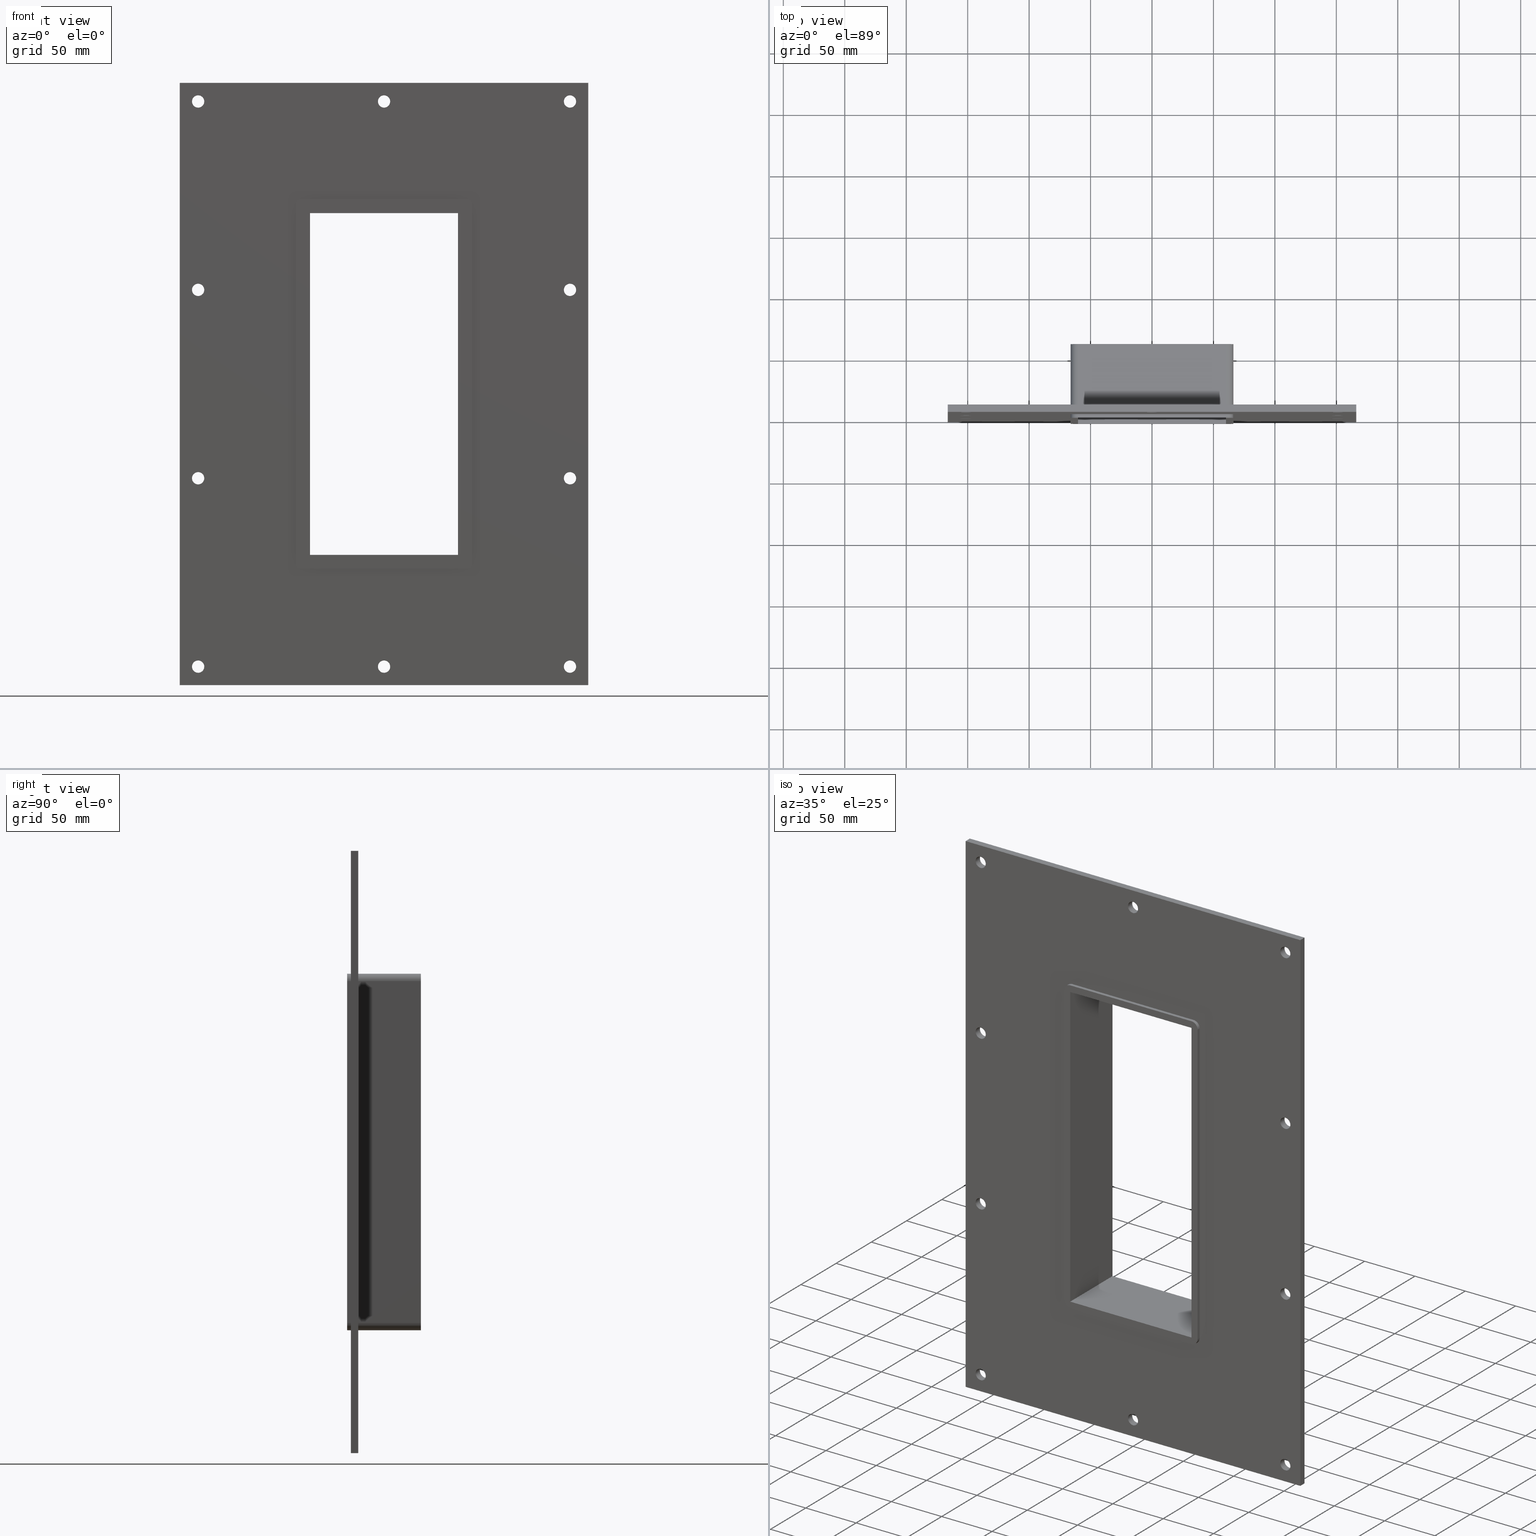
[diagram: canonical four-view strip — front | top / right | iso, engineering-drawing reading convention]
A machine part, canonical four-view strip (front | top / right | iso — engineering-drawing reading convention). The complete STEP part file that produces these views, byte-faithful:
ISO-10303-21;
HEADER;
/****************************************************************
 * Generated by software with PDElib inside                    *
 * PDElib Version v51a, created Wed 11/30/2011                  *
 * ITI Transcendata (http://www.transcendata.com/)              *
 ****************************************************************/
FILE_DESCRIPTION((''),'2;1');
FILE_NAME('C:\\RoxtecConfigurator\\CreatedFiles\\STEP\\GHFL1008X1.stp','2014-04-28T09:55:43',(''),(''),'Autodesk Inventor 2013','Autodesk Inventor 2013','');
FILE_SCHEMA(('AUTOMOTIVE_DESIGN { 1 0 10303 214 1 1 1 1 }'));
ENDSEC;
DATA;
#5=APPLICATION_CONTEXT('automotive design');
#6=APPLICATION_PROTOCOL_DEFINITION('International Standard','automotive_design',2001,#5);
#7=PRODUCT_CONTEXT('',#5,'mechanical');
#8=PRODUCT('GH FL100_ISO','GH FL100_ISO',$,(#7));
#9=PRODUCT_RELATED_PRODUCT_CATEGORY('part',$,(#8));
#10=PRODUCT_DEFINITION_FORMATION('',$,#8);
#11=PRODUCT_DEFINITION_CONTEXT('part definition',#5,'design');
#12=PRODUCT_DEFINITION('',$,#10,#11);
#18=(NAMED_UNIT(*)PLANE_ANGLE_UNIT()SI_UNIT($,.RADIAN.));
#19=DIMENSIONAL_EXPONENTS(0.0,0.0,0.0,0.0,0.0,0.0,0.0);
#20=PLANE_ANGLE_MEASURE_WITH_UNIT(PLANE_ANGLE_MEASURE(0.0174532925),#18);
#24=(CONVERSION_BASED_UNIT('DEGREE',#20)NAMED_UNIT(#19)PLANE_ANGLE_UNIT());
#28=(NAMED_UNIT(*)SI_UNIT($,.STERADIAN.)SOLID_ANGLE_UNIT());
#32=(LENGTH_UNIT()NAMED_UNIT(*)SI_UNIT(.MILLI.,.METRE.));
#34=UNCERTAINTY_MEASURE_WITH_UNIT(LENGTH_MEASURE(0.01),#32,'DISTANCE_ACCURACY_VALUE','');
#36=(GEOMETRIC_REPRESENTATION_CONTEXT(3)GLOBAL_UNCERTAINTY_ASSIGNED_CONTEXT((#34))GLOBAL_UNIT_ASSIGNED_CONTEXT((#24,#28,#32))REPRESENTATION_CONTEXT('None','None'));
#37=AXIS2_PLACEMENT_3D('',#38,#39,#40);
#38=CARTESIAN_POINT('',(0.0,0.0,0.0));
#39=DIRECTION('',(0.0,0.0,1.0));
#40=DIRECTION('',(1.0,0.0,0.0));
#41=SHAPE_REPRESENTATION('',(#37),#36);
#42=PRODUCT_DEFINITION_SHAPE('','',#12);
#43=SHAPE_DEFINITION_REPRESENTATION(#42,#41);
#49=(NAMED_UNIT(*)PLANE_ANGLE_UNIT()SI_UNIT($,.RADIAN.));
#50=DIMENSIONAL_EXPONENTS(0.0,0.0,0.0,0.0,0.0,0.0,0.0);
#51=PLANE_ANGLE_MEASURE_WITH_UNIT(PLANE_ANGLE_MEASURE(0.0174532925),#49);
#55=(CONVERSION_BASED_UNIT('DEGREE',#51)NAMED_UNIT(#50)PLANE_ANGLE_UNIT());
#59=(NAMED_UNIT(*)SI_UNIT($,.STERADIAN.)SOLID_ANGLE_UNIT());
#63=(LENGTH_UNIT()NAMED_UNIT(*)SI_UNIT(.MILLI.,.METRE.));
#65=UNCERTAINTY_MEASURE_WITH_UNIT(LENGTH_MEASURE(0.000001),#63,'DISTANCE_ACCURACY_VALUE','');
#67=(GEOMETRIC_REPRESENTATION_CONTEXT(3)GLOBAL_UNCERTAINTY_ASSIGNED_CONTEXT((#65))GLOBAL_UNIT_ASSIGNED_CONTEXT((#55,#59,#63))REPRESENTATION_CONTEXT('','3D'));
#68=CARTESIAN_POINT('',(-151.25000000000006,595.19429600761453,-229.99999999999994));
#69=DIRECTION('',(0.0,-1.0,0.0));
#70=DIRECTION('',(1.0,0.0,0.0));
#71=AXIS2_PLACEMENT_3D('',#68,#69,#70);
#72=CYLINDRICAL_SURFACE('',#71,5.0);
#73=CARTESIAN_POINT('',(-156.25000000000006,6.000000000000014,-229.99999999999994));
#74=VERTEX_POINT('',#73);
#75=CARTESIAN_POINT('',(-151.25000000000006,6.000000000000014,-229.99999999999994));
#76=DIRECTION('',(0.0,-1.0,0.0));
#77=DIRECTION('',(1.0,0.0,0.0));
#78=AXIS2_PLACEMENT_3D('',#75,#76,#77);
#79=CIRCLE('',#78,5.0);
#80=EDGE_CURVE('',#74,#74,#79,.T.);
#81=ORIENTED_EDGE('',*,*,#80,.F.);
#82=EDGE_LOOP('',(#81));
#83=FACE_OUTER_BOUND('',#82,.T.);
#84=CARTESIAN_POINT('',(-146.25000000000006,0.0,-229.99999999999994));
#85=VERTEX_POINT('',#84);
#86=CARTESIAN_POINT('',(-151.25000000000006,0.0,-229.99999999999994));
#87=DIRECTION('',(0.0,1.0,0.0));
#88=DIRECTION('',(1.0,0.0,0.0));
#89=AXIS2_PLACEMENT_3D('',#86,#87,#88);
#90=CIRCLE('',#89,5.0);
#91=EDGE_CURVE('',#85,#85,#90,.T.);
#92=ORIENTED_EDGE('',*,*,#91,.F.);
#93=EDGE_LOOP('',(#92));
#94=FACE_BOUND('',#93,.T.);
#95=ADVANCED_FACE('',(#83,#94),#72,.F.);
#96=CARTESIAN_POINT('',(151.34999999999997,595.19429600761453,-76.699999999999875));
#97=DIRECTION('',(0.0,-1.0,0.0));
#98=DIRECTION('',(1.0,0.0,0.0));
#99=AXIS2_PLACEMENT_3D('',#96,#97,#98);
#100=CYLINDRICAL_SURFACE('',#99,5.0);
#101=CARTESIAN_POINT('',(146.34999999999997,6.000000000000014,-76.699999999999875));
#102=VERTEX_POINT('',#101);
#103=CARTESIAN_POINT('',(151.34999999999997,6.000000000000014,-76.699999999999875));
#104=DIRECTION('',(0.0,-1.0,0.0));
#105=DIRECTION('',(1.0,0.0,0.0));
#106=AXIS2_PLACEMENT_3D('',#103,#104,#105);
#107=CIRCLE('',#106,5.0);
#108=EDGE_CURVE('',#102,#102,#107,.T.);
#109=ORIENTED_EDGE('',*,*,#108,.F.);
#110=EDGE_LOOP('',(#109));
#111=FACE_OUTER_BOUND('',#110,.T.);
#112=CARTESIAN_POINT('',(156.34999999999997,0.0,-76.699999999999875));
#113=VERTEX_POINT('',#112);
#114=CARTESIAN_POINT('',(151.34999999999997,0.0,-76.699999999999875));
#115=DIRECTION('',(0.0,1.0,0.0));
#116=DIRECTION('',(1.0,0.0,0.0));
#117=AXIS2_PLACEMENT_3D('',#114,#115,#116);
#118=CIRCLE('',#117,5.0);
#119=EDGE_CURVE('',#113,#113,#118,.T.);
#120=ORIENTED_EDGE('',*,*,#119,.F.);
#121=EDGE_LOOP('',(#120));
#122=FACE_BOUND('',#121,.T.);
#123=ADVANCED_FACE('',(#111,#122),#100,.F.);
#124=CARTESIAN_POINT('',(-151.25000000000006,595.19429600761453,-76.699999999999875));
#125=DIRECTION('',(0.0,-1.0,0.0));
#126=DIRECTION('',(1.0,0.0,0.0));
#127=AXIS2_PLACEMENT_3D('',#124,#125,#126);
#128=CYLINDRICAL_SURFACE('',#127,5.0);
#129=CARTESIAN_POINT('',(-156.25000000000006,6.000000000000014,-76.699999999999875));
#130=VERTEX_POINT('',#129);
#131=CARTESIAN_POINT('',(-151.25000000000006,6.000000000000014,-76.699999999999875));
#132=DIRECTION('',(0.0,-1.0,0.0));
#133=DIRECTION('',(1.0,0.0,0.0));
#134=AXIS2_PLACEMENT_3D('',#131,#132,#133);
#135=CIRCLE('',#134,5.0);
#136=EDGE_CURVE('',#130,#130,#135,.T.);
#137=ORIENTED_EDGE('',*,*,#136,.F.);
#138=EDGE_LOOP('',(#137));
#139=FACE_OUTER_BOUND('',#138,.T.);
#140=CARTESIAN_POINT('',(-146.25000000000006,0.0,-76.699999999999875));
#141=VERTEX_POINT('',#140);
#142=CARTESIAN_POINT('',(-151.25000000000006,0.0,-76.699999999999875));
#143=DIRECTION('',(0.0,1.0,0.0));
#144=DIRECTION('',(1.0,0.0,0.0));
#145=AXIS2_PLACEMENT_3D('',#142,#143,#144);
#146=CIRCLE('',#145,5.0);
#147=EDGE_CURVE('',#141,#141,#146,.T.);
#148=ORIENTED_EDGE('',*,*,#147,.F.);
#149=EDGE_LOOP('',(#148));
#150=FACE_BOUND('',#149,.T.);
#151=ADVANCED_FACE('',(#139,#150),#128,.F.);
#152=CARTESIAN_POINT('',(151.34999999999997,595.19429600761453,76.600000000000136));
#153=DIRECTION('',(0.0,-1.0,0.0));
#154=DIRECTION('',(1.0,0.0,0.0));
#155=AXIS2_PLACEMENT_3D('',#152,#153,#154);
#156=CYLINDRICAL_SURFACE('',#155,5.0);
#157=CARTESIAN_POINT('',(146.34999999999997,6.000000000000014,76.600000000000136));
#158=VERTEX_POINT('',#157);
#159=CARTESIAN_POINT('',(151.34999999999997,6.000000000000014,76.600000000000136));
#160=DIRECTION('',(0.0,-1.0,0.0));
#161=DIRECTION('',(1.0,0.0,0.0));
#162=AXIS2_PLACEMENT_3D('',#159,#160,#161);
#163=CIRCLE('',#162,5.0);
#164=EDGE_CURVE('',#158,#158,#163,.T.);
#165=ORIENTED_EDGE('',*,*,#164,.F.);
#166=EDGE_LOOP('',(#165));
#167=FACE_OUTER_BOUND('',#166,.T.);
#168=CARTESIAN_POINT('',(156.34999999999997,0.0,76.600000000000136));
#169=VERTEX_POINT('',#168);
#170=CARTESIAN_POINT('',(151.34999999999997,0.0,76.600000000000136));
#171=DIRECTION('',(0.0,1.0,0.0));
#172=DIRECTION('',(1.0,0.0,0.0));
#173=AXIS2_PLACEMENT_3D('',#170,#171,#172);
#174=CIRCLE('',#173,5.0);
#175=EDGE_CURVE('',#169,#169,#174,.T.);
#176=ORIENTED_EDGE('',*,*,#175,.F.);
#177=EDGE_LOOP('',(#176));
#178=FACE_BOUND('',#177,.T.);
#179=ADVANCED_FACE('',(#167,#178),#156,.F.);
#180=CARTESIAN_POINT('',(-151.25000000000006,595.19429600761453,76.600000000000136));
#181=DIRECTION('',(0.0,-1.0,0.0));
#182=DIRECTION('',(1.0,0.0,0.0));
#183=AXIS2_PLACEMENT_3D('',#180,#181,#182);
#184=CYLINDRICAL_SURFACE('',#183,5.0);
#185=CARTESIAN_POINT('',(-156.25000000000006,6.000000000000014,76.600000000000136));
#186=VERTEX_POINT('',#185);
#187=CARTESIAN_POINT('',(-151.25000000000006,6.000000000000014,76.600000000000136));
#188=DIRECTION('',(0.0,-1.0,0.0));
#189=DIRECTION('',(1.0,0.0,0.0));
#190=AXIS2_PLACEMENT_3D('',#187,#188,#189);
#191=CIRCLE('',#190,5.0);
#192=EDGE_CURVE('',#186,#186,#191,.T.);
#193=ORIENTED_EDGE('',*,*,#192,.F.);
#194=EDGE_LOOP('',(#193));
#195=FACE_OUTER_BOUND('',#194,.T.);
#196=CARTESIAN_POINT('',(-146.25000000000006,0.0,76.600000000000136));
#197=VERTEX_POINT('',#196);
#198=CARTESIAN_POINT('',(-151.25000000000006,0.0,76.600000000000136));
#199=DIRECTION('',(0.0,1.0,0.0));
#200=DIRECTION('',(1.0,0.0,0.0));
#201=AXIS2_PLACEMENT_3D('',#198,#199,#200);
#202=CIRCLE('',#201,5.0);
#203=EDGE_CURVE('',#197,#197,#202,.T.);
#204=ORIENTED_EDGE('',*,*,#203,.F.);
#205=EDGE_LOOP('',(#204));
#206=FACE_BOUND('',#205,.T.);
#207=ADVANCED_FACE('',(#195,#206),#184,.F.);
#208=CARTESIAN_POINT('',(0.049999999999955,595.19429600761453,229.90000000000015));
#209=DIRECTION('',(0.0,-1.0,0.0));
#210=DIRECTION('',(1.0,0.0,0.0));
#211=AXIS2_PLACEMENT_3D('',#208,#209,#210);
#212=CYLINDRICAL_SURFACE('',#211,5.0);
#213=CARTESIAN_POINT('',(-4.950000000000046,6.000000000000014,229.90000000000015));
#214=VERTEX_POINT('',#213);
#215=CARTESIAN_POINT('',(0.049999999999955,6.000000000000014,229.90000000000015));
#216=DIRECTION('',(0.0,-1.0,0.0));
#217=DIRECTION('',(1.0,0.0,0.0));
#218=AXIS2_PLACEMENT_3D('',#215,#216,#217);
#219=CIRCLE('',#218,5.0);
#220=EDGE_CURVE('',#214,#214,#219,.T.);
#221=ORIENTED_EDGE('',*,*,#220,.F.);
#222=EDGE_LOOP('',(#221));
#223=FACE_OUTER_BOUND('',#222,.T.);
#224=CARTESIAN_POINT('',(5.049999999999955,0.0,229.90000000000015));
#225=VERTEX_POINT('',#224);
#226=CARTESIAN_POINT('',(0.049999999999955,0.0,229.90000000000015));
#227=DIRECTION('',(0.0,1.0,0.0));
#228=DIRECTION('',(1.0,0.0,0.0));
#229=AXIS2_PLACEMENT_3D('',#226,#227,#228);
#230=CIRCLE('',#229,5.0);
#231=EDGE_CURVE('',#225,#225,#230,.T.);
#232=ORIENTED_EDGE('',*,*,#231,.F.);
#233=EDGE_LOOP('',(#232));
#234=FACE_BOUND('',#233,.T.);
#235=ADVANCED_FACE('',(#223,#234),#212,.F.);
#236=CARTESIAN_POINT('',(0.049999999999955,595.19429600761453,-229.99999999999994));
#237=DIRECTION('',(0.0,-1.0,0.0));
#238=DIRECTION('',(1.0,0.0,0.0));
#239=AXIS2_PLACEMENT_3D('',#236,#237,#238);
#240=CYLINDRICAL_SURFACE('',#239,5.0);
#241=CARTESIAN_POINT('',(-4.950000000000046,6.000000000000014,-229.99999999999994));
#242=VERTEX_POINT('',#241);
#243=CARTESIAN_POINT('',(0.049999999999955,6.000000000000014,-229.99999999999994));
#244=DIRECTION('',(0.0,-1.0,0.0));
#245=DIRECTION('',(1.0,0.0,0.0));
#246=AXIS2_PLACEMENT_3D('',#243,#244,#245);
#247=CIRCLE('',#246,5.0);
#248=EDGE_CURVE('',#242,#242,#247,.T.);
#249=ORIENTED_EDGE('',*,*,#248,.F.);
#250=EDGE_LOOP('',(#249));
#251=FACE_OUTER_BOUND('',#250,.T.);
#252=CARTESIAN_POINT('',(5.049999999999955,0.0,-229.99999999999994));
#253=VERTEX_POINT('',#252);
#254=CARTESIAN_POINT('',(0.049999999999955,0.0,-229.99999999999994));
#255=DIRECTION('',(0.0,1.0,0.0));
#256=DIRECTION('',(1.0,0.0,0.0));
#257=AXIS2_PLACEMENT_3D('',#254,#255,#256);
#258=CIRCLE('',#257,5.0);
#259=EDGE_CURVE('',#253,#253,#258,.T.);
#260=ORIENTED_EDGE('',*,*,#259,.F.);
#261=EDGE_LOOP('',(#260));
#262=FACE_BOUND('',#261,.T.);
#263=ADVANCED_FACE('',(#251,#262),#240,.F.);
#264=CARTESIAN_POINT('',(151.34999999999997,595.19429600761453,-229.99999999999994));
#265=DIRECTION('',(0.0,-1.0,0.0));
#266=DIRECTION('',(1.0,0.0,0.0));
#267=AXIS2_PLACEMENT_3D('',#264,#265,#266);
#268=CYLINDRICAL_SURFACE('',#267,5.0);
#269=CARTESIAN_POINT('',(146.34999999999997,6.000000000000014,-229.99999999999994));
#270=VERTEX_POINT('',#269);
#271=CARTESIAN_POINT('',(151.34999999999997,6.000000000000014,-229.99999999999994));
#272=DIRECTION('',(0.0,-1.0,0.0));
#273=DIRECTION('',(1.0,0.0,0.0));
#274=AXIS2_PLACEMENT_3D('',#271,#272,#273);
#275=CIRCLE('',#274,5.0);
#276=EDGE_CURVE('',#270,#270,#275,.T.);
#277=ORIENTED_EDGE('',*,*,#276,.F.);
#278=EDGE_LOOP('',(#277));
#279=FACE_OUTER_BOUND('',#278,.T.);
#280=CARTESIAN_POINT('',(156.34999999999997,0.0,-229.99999999999994));
#281=VERTEX_POINT('',#280);
#282=CARTESIAN_POINT('',(151.34999999999997,0.0,-229.99999999999994));
#283=DIRECTION('',(0.0,1.0,0.0));
#284=DIRECTION('',(1.0,0.0,0.0));
#285=AXIS2_PLACEMENT_3D('',#282,#283,#284);
#286=CIRCLE('',#285,5.0);
#287=EDGE_CURVE('',#281,#281,#286,.T.);
#288=ORIENTED_EDGE('',*,*,#287,.F.);
#289=EDGE_LOOP('',(#288));
#290=FACE_BOUND('',#289,.T.);
#291=ADVANCED_FACE('',(#279,#290),#268,.F.);
#292=CARTESIAN_POINT('',(-151.25000000000006,595.19429600761453,229.90000000000015));
#293=DIRECTION('',(0.0,-1.0,0.0));
#294=DIRECTION('',(1.0,0.0,0.0));
#295=AXIS2_PLACEMENT_3D('',#292,#293,#294);
#296=CYLINDRICAL_SURFACE('',#295,5.0);
#297=CARTESIAN_POINT('',(-156.25000000000006,6.000000000000014,229.90000000000015));
#298=VERTEX_POINT('',#297);
#299=CARTESIAN_POINT('',(-151.25000000000006,6.000000000000014,229.90000000000015));
#300=DIRECTION('',(0.0,-1.0,0.0));
#301=DIRECTION('',(1.0,0.0,0.0));
#302=AXIS2_PLACEMENT_3D('',#299,#300,#301);
#303=CIRCLE('',#302,5.0);
#304=EDGE_CURVE('',#298,#298,#303,.T.);
#305=ORIENTED_EDGE('',*,*,#304,.F.);
#306=EDGE_LOOP('',(#305));
#307=FACE_OUTER_BOUND('',#306,.T.);
#308=CARTESIAN_POINT('',(-146.25000000000006,0.0,229.90000000000015));
#309=VERTEX_POINT('',#308);
#310=CARTESIAN_POINT('',(-151.25000000000006,0.0,229.90000000000015));
#311=DIRECTION('',(0.0,1.0,0.0));
#312=DIRECTION('',(1.0,0.0,0.0));
#313=AXIS2_PLACEMENT_3D('',#310,#311,#312);
#314=CIRCLE('',#313,5.0);
#315=EDGE_CURVE('',#309,#309,#314,.T.);
#316=ORIENTED_EDGE('',*,*,#315,.F.);
#317=EDGE_LOOP('',(#316));
#318=FACE_BOUND('',#317,.T.);
#319=ADVANCED_FACE('',(#307,#318),#296,.F.);
#320=CARTESIAN_POINT('',(151.34999999999997,595.19429600761453,229.90000000000015));
#321=DIRECTION('',(0.0,-1.0,0.0));
#322=DIRECTION('',(1.0,0.0,0.0));
#323=AXIS2_PLACEMENT_3D('',#320,#321,#322);
#324=CYLINDRICAL_SURFACE('',#323,5.0);
#325=CARTESIAN_POINT('',(146.34999999999997,6.000000000000014,229.90000000000015));
#326=VERTEX_POINT('',#325);
#327=CARTESIAN_POINT('',(151.34999999999997,6.000000000000014,229.90000000000015));
#328=DIRECTION('',(0.0,-1.0,0.0));
#329=DIRECTION('',(1.0,0.0,0.0));
#330=AXIS2_PLACEMENT_3D('',#327,#328,#329);
#331=CIRCLE('',#330,5.0);
#332=EDGE_CURVE('',#326,#326,#331,.T.);
#333=ORIENTED_EDGE('',*,*,#332,.F.);
#334=EDGE_LOOP('',(#333));
#335=FACE_OUTER_BOUND('',#334,.T.);
#336=CARTESIAN_POINT('',(156.34999999999997,0.0,229.90000000000015));
#337=VERTEX_POINT('',#336);
#338=CARTESIAN_POINT('',(151.34999999999997,0.0,229.90000000000015));
#339=DIRECTION('',(0.0,1.0,0.0));
#340=DIRECTION('',(1.0,0.0,0.0));
#341=AXIS2_PLACEMENT_3D('',#338,#339,#340);
#342=CIRCLE('',#341,5.0);
#343=EDGE_CURVE('',#337,#337,#342,.T.);
#344=ORIENTED_EDGE('',*,*,#343,.F.);
#345=EDGE_LOOP('',(#344));
#346=FACE_BOUND('',#345,.T.);
#347=ADVANCED_FACE('',(#335,#346),#324,.F.);
#348=CARTESIAN_POINT('',(0.0,6.000000000000001,4.168229E-014));
#349=DIRECTION('',(0.0,1.0,0.0));
#350=DIRECTION('',(0.0,0.0,1.0));
#351=AXIS2_PLACEMENT_3D('',#348,#349,#350);
#352=PLANE('',#351);
#353=CARTESIAN_POINT('',(-166.25,6.000000000000001,245.0));
#354=VERTEX_POINT('',#353);
#355=CARTESIAN_POINT('',(166.25,6.000000000000001,245.0));
#356=VERTEX_POINT('',#355);
#357=CARTESIAN_POINT('',(-166.25,6.000000000000001,245.0));
#358=DIRECTION('',(1.0,0.0,0.0));
#359=VECTOR('',#358,332.5);
#360=LINE('',#357,#359);
#361=EDGE_CURVE('',#354,#356,#360,.T.);
#362=ORIENTED_EDGE('',*,*,#361,.T.);
#363=CARTESIAN_POINT('',(166.25,6.000000000000001,-244.99999999999994));
#364=VERTEX_POINT('',#363);
#365=CARTESIAN_POINT('',(166.25,6.000000000000001,245.0));
#366=DIRECTION('',(0.0,0.0,-1.0));
#367=VECTOR('',#366,489.99999999999994);
#368=LINE('',#365,#367);
#369=EDGE_CURVE('',#356,#364,#368,.T.);
#370=ORIENTED_EDGE('',*,*,#369,.T.);
#371=CARTESIAN_POINT('',(-166.25,6.000000000000001,-244.99999999999994));
#372=VERTEX_POINT('',#371);
#373=CARTESIAN_POINT('',(166.25,6.000000000000001,-244.99999999999994));
#374=DIRECTION('',(-1.0,0.0,0.0));
#375=VECTOR('',#374,332.5);
#376=LINE('',#373,#375);
#377=EDGE_CURVE('',#364,#372,#376,.T.);
#378=ORIENTED_EDGE('',*,*,#377,.T.);
#379=CARTESIAN_POINT('',(-166.25,6.000000000000001,-244.99999999999994));
#380=DIRECTION('',(0.0,0.0,1.0));
#381=VECTOR('',#380,489.99999999999994);
#382=LINE('',#379,#381);
#383=EDGE_CURVE('',#372,#354,#382,.T.);
#384=ORIENTED_EDGE('',*,*,#383,.T.);
#385=EDGE_LOOP('',(#362,#370,#378,#384));
#386=FACE_OUTER_BOUND('',#385,.T.);
#387=ORIENTED_EDGE('',*,*,#80,.T.);
#388=EDGE_LOOP('',(#387));
#389=FACE_BOUND('',#388,.T.);
#390=ORIENTED_EDGE('',*,*,#108,.T.);
#391=EDGE_LOOP('',(#390));
#392=FACE_BOUND('',#391,.T.);
#393=ORIENTED_EDGE('',*,*,#136,.T.);
#394=EDGE_LOOP('',(#393));
#395=FACE_BOUND('',#394,.T.);
#396=ORIENTED_EDGE('',*,*,#164,.T.);
#397=EDGE_LOOP('',(#396));
#398=FACE_BOUND('',#397,.T.);
#399=ORIENTED_EDGE('',*,*,#192,.T.);
#400=EDGE_LOOP('',(#399));
#401=FACE_BOUND('',#400,.T.);
#402=ORIENTED_EDGE('',*,*,#220,.T.);
#403=EDGE_LOOP('',(#402));
#404=FACE_BOUND('',#403,.T.);
#405=ORIENTED_EDGE('',*,*,#248,.T.);
#406=EDGE_LOOP('',(#405));
#407=FACE_BOUND('',#406,.T.);
#408=ORIENTED_EDGE('',*,*,#276,.T.);
#409=EDGE_LOOP('',(#408));
#410=FACE_BOUND('',#409,.T.);
#411=ORIENTED_EDGE('',*,*,#304,.T.);
#412=EDGE_LOOP('',(#411));
#413=FACE_BOUND('',#412,.T.);
#414=ORIENTED_EDGE('',*,*,#332,.T.);
#415=EDGE_LOOP('',(#414));
#416=FACE_BOUND('',#415,.T.);
#417=CARTESIAN_POINT('',(-60.25,6.000000000000001,-145.0));
#418=VERTEX_POINT('',#417);
#419=CARTESIAN_POINT('',(-66.25,6.000000000000001,-139.0));
#420=VERTEX_POINT('',#419);
#421=CARTESIAN_POINT('',(-60.25,6.000000000000001,-139.0));
#422=DIRECTION('',(0.0,1.0,0.0));
#423=DIRECTION('',(-0.707106781186546,0.0,-0.707106781186549));
#424=AXIS2_PLACEMENT_3D('',#421,#422,#423);
#425=CIRCLE('',#424,6.000000000000001);
#426=EDGE_CURVE('',#418,#420,#425,.T.);
#427=ORIENTED_EDGE('',*,*,#426,.F.);
#428=CARTESIAN_POINT('',(60.25,6.000000000000001,-145.0));
#429=VERTEX_POINT('',#428);
#430=CARTESIAN_POINT('',(60.25,6.000000000000001,-145.0));
#431=DIRECTION('',(-1.0,0.0,0.0));
#432=VECTOR('',#431,120.5);
#433=LINE('',#430,#432);
#434=EDGE_CURVE('',#429,#418,#433,.T.);
#435=ORIENTED_EDGE('',*,*,#434,.F.);
#436=CARTESIAN_POINT('',(66.25,6.000000000000001,-139.0));
#437=VERTEX_POINT('',#436);
#438=CARTESIAN_POINT('',(60.25,6.000000000000001,-139.0));
#439=DIRECTION('',(0.0,1.0,0.0));
#440=DIRECTION('',(0.707106781186546,0.0,-0.707106781186549));
#441=AXIS2_PLACEMENT_3D('',#438,#439,#440);
#442=CIRCLE('',#441,6.000000000000001);
#443=EDGE_CURVE('',#437,#429,#442,.T.);
#444=ORIENTED_EDGE('',*,*,#443,.F.);
#445=CARTESIAN_POINT('',(66.25,6.000000000000001,139.0));
#446=VERTEX_POINT('',#445);
#447=CARTESIAN_POINT('',(66.25,6.000000000000001,139.0));
#448=DIRECTION('',(0.0,0.0,-1.0));
#449=VECTOR('',#448,278.0);
#450=LINE('',#447,#449);
#451=EDGE_CURVE('',#446,#437,#450,.T.);
#452=ORIENTED_EDGE('',*,*,#451,.F.);
#453=CARTESIAN_POINT('',(60.25,6.000000000000001,145.0));
#454=VERTEX_POINT('',#453);
#455=CARTESIAN_POINT('',(60.25,6.000000000000001,139.0));
#456=DIRECTION('',(0.0,1.0,0.0));
#457=DIRECTION('',(0.707106781186548,0.0,0.707106781186547));
#458=AXIS2_PLACEMENT_3D('',#455,#456,#457);
#459=CIRCLE('',#458,6.0);
#460=EDGE_CURVE('',#454,#446,#459,.T.);
#461=ORIENTED_EDGE('',*,*,#460,.F.);
#462=CARTESIAN_POINT('',(-60.25,6.000000000000001,145.0));
#463=VERTEX_POINT('',#462);
#464=CARTESIAN_POINT('',(-60.25,6.000000000000001,145.0));
#465=DIRECTION('',(1.0,0.0,0.0));
#466=VECTOR('',#465,120.5);
#467=LINE('',#464,#466);
#468=EDGE_CURVE('',#463,#454,#467,.T.);
#469=ORIENTED_EDGE('',*,*,#468,.F.);
#470=CARTESIAN_POINT('',(-66.25,6.000000000000001,139.0));
#471=VERTEX_POINT('',#470);
#472=CARTESIAN_POINT('',(-60.25,6.000000000000001,139.0));
#473=DIRECTION('',(0.0,1.0,0.0));
#474=DIRECTION('',(-0.707106781186546,0.0,0.707106781186549));
#475=AXIS2_PLACEMENT_3D('',#472,#473,#474);
#476=CIRCLE('',#475,6.000000000000001);
#477=EDGE_CURVE('',#471,#463,#476,.T.);
#478=ORIENTED_EDGE('',*,*,#477,.F.);
#479=CARTESIAN_POINT('',(-66.25,6.000000000000001,-139.0));
#480=DIRECTION('',(0.0,0.0,1.0));
#481=VECTOR('',#480,278.0);
#482=LINE('',#479,#481);
#483=EDGE_CURVE('',#420,#471,#482,.T.);
#484=ORIENTED_EDGE('',*,*,#483,.F.);
#485=EDGE_LOOP('',(#427,#435,#444,#452,#461,#469,#478,#484));
#486=FACE_BOUND('',#485,.T.);
#487=ADVANCED_FACE('',(#386,#389,#392,#395,#398,#401,#404,#407,#410,#413,#416,#486),#352,.T.);
#488=CARTESIAN_POINT('',(0.0,0.0,4.168229E-014));
#489=DIRECTION('',(0.0,1.0,0.0));
#490=DIRECTION('',(0.0,0.0,1.0));
#491=AXIS2_PLACEMENT_3D('',#488,#489,#490);
#492=PLANE('',#491);
#493=CARTESIAN_POINT('',(-166.25,0.0,245.0));
#494=VERTEX_POINT('',#493);
#495=CARTESIAN_POINT('',(166.25,0.0,245.0));
#496=VERTEX_POINT('',#495);
#497=CARTESIAN_POINT('',(-166.25,0.0,245.0));
#498=DIRECTION('',(1.0,0.0,0.0));
#499=VECTOR('',#498,332.5);
#500=LINE('',#497,#499);
#501=EDGE_CURVE('',#494,#496,#500,.T.);
#502=ORIENTED_EDGE('',*,*,#501,.F.);
#503=CARTESIAN_POINT('',(-166.25,0.0,-244.99999999999994));
#504=VERTEX_POINT('',#503);
#505=CARTESIAN_POINT('',(-166.25,0.0,-244.99999999999994));
#506=DIRECTION('',(0.0,0.0,1.0));
#507=VECTOR('',#506,489.99999999999994);
#508=LINE('',#505,#507);
#509=EDGE_CURVE('',#504,#494,#508,.T.);
#510=ORIENTED_EDGE('',*,*,#509,.F.);
#511=CARTESIAN_POINT('',(166.25,0.0,-244.99999999999994));
#512=VERTEX_POINT('',#511);
#513=CARTESIAN_POINT('',(166.25,0.0,-244.99999999999994));
#514=DIRECTION('',(-1.0,0.0,0.0));
#515=VECTOR('',#514,332.5);
#516=LINE('',#513,#515);
#517=EDGE_CURVE('',#512,#504,#516,.T.);
#518=ORIENTED_EDGE('',*,*,#517,.F.);
#519=CARTESIAN_POINT('',(166.25,0.0,245.0));
#520=DIRECTION('',(0.0,0.0,-1.0));
#521=VECTOR('',#520,489.99999999999994);
#522=LINE('',#519,#521);
#523=EDGE_CURVE('',#496,#512,#522,.T.);
#524=ORIENTED_EDGE('',*,*,#523,.F.);
#525=EDGE_LOOP('',(#502,#510,#518,#524));
#526=FACE_OUTER_BOUND('',#525,.T.);
#527=ORIENTED_EDGE('',*,*,#91,.T.);
#528=EDGE_LOOP('',(#527));
#529=FACE_BOUND('',#528,.T.);
#530=ORIENTED_EDGE('',*,*,#119,.T.);
#531=EDGE_LOOP('',(#530));
#532=FACE_BOUND('',#531,.T.);
#533=ORIENTED_EDGE('',*,*,#147,.T.);
#534=EDGE_LOOP('',(#533));
#535=FACE_BOUND('',#534,.T.);
#536=ORIENTED_EDGE('',*,*,#175,.T.);
#537=EDGE_LOOP('',(#536));
#538=FACE_BOUND('',#537,.T.);
#539=ORIENTED_EDGE('',*,*,#203,.T.);
#540=EDGE_LOOP('',(#539));
#541=FACE_BOUND('',#540,.T.);
#542=ORIENTED_EDGE('',*,*,#231,.T.);
#543=EDGE_LOOP('',(#542));
#544=FACE_BOUND('',#543,.T.);
#545=ORIENTED_EDGE('',*,*,#259,.T.);
#546=EDGE_LOOP('',(#545));
#547=FACE_BOUND('',#546,.T.);
#548=ORIENTED_EDGE('',*,*,#287,.T.);
#549=EDGE_LOOP('',(#548));
#550=FACE_BOUND('',#549,.T.);
#551=ORIENTED_EDGE('',*,*,#315,.T.);
#552=EDGE_LOOP('',(#551));
#553=FACE_BOUND('',#552,.T.);
#554=ORIENTED_EDGE('',*,*,#343,.T.);
#555=EDGE_LOOP('',(#554));
#556=FACE_BOUND('',#555,.T.);
#557=CARTESIAN_POINT('',(-66.25,0.0,-139.0));
#558=VERTEX_POINT('',#557);
#559=CARTESIAN_POINT('',(-60.25,0.0,-145.0));
#560=VERTEX_POINT('',#559);
#561=CARTESIAN_POINT('',(-60.25,0.0,-139.0));
#562=DIRECTION('',(0.0,-1.0,0.0));
#563=DIRECTION('',(-0.707106781186546,0.0,-0.707106781186549));
#564=AXIS2_PLACEMENT_3D('',#561,#562,#563);
#565=CIRCLE('',#564,6.000000000000001);
#566=EDGE_CURVE('',#558,#560,#565,.T.);
#567=ORIENTED_EDGE('',*,*,#566,.F.);
#568=CARTESIAN_POINT('',(-66.25,0.0,139.0));
#569=VERTEX_POINT('',#568);
#570=CARTESIAN_POINT('',(-66.25,0.0,139.0));
#571=DIRECTION('',(0.0,0.0,-1.0));
#572=VECTOR('',#571,278.0);
#573=LINE('',#570,#572);
#574=EDGE_CURVE('',#569,#558,#573,.T.);
#575=ORIENTED_EDGE('',*,*,#574,.F.);
#576=CARTESIAN_POINT('',(-60.25,0.0,145.0));
#577=VERTEX_POINT('',#576);
#578=CARTESIAN_POINT('',(-60.25,0.0,139.0));
#579=DIRECTION('',(0.0,-1.0,0.0));
#580=DIRECTION('',(-0.707106781186546,0.0,0.707106781186549));
#581=AXIS2_PLACEMENT_3D('',#578,#579,#580);
#582=CIRCLE('',#581,6.000000000000001);
#583=EDGE_CURVE('',#577,#569,#582,.T.);
#584=ORIENTED_EDGE('',*,*,#583,.F.);
#585=CARTESIAN_POINT('',(60.25,0.0,145.0));
#586=VERTEX_POINT('',#585);
#587=CARTESIAN_POINT('',(60.25,0.0,145.0));
#588=DIRECTION('',(-1.0,0.0,0.0));
#589=VECTOR('',#588,120.5);
#590=LINE('',#587,#589);
#591=EDGE_CURVE('',#586,#577,#590,.T.);
#592=ORIENTED_EDGE('',*,*,#591,.F.);
#593=CARTESIAN_POINT('',(66.25,0.0,139.0));
#594=VERTEX_POINT('',#593);
#595=CARTESIAN_POINT('',(60.25,0.0,139.0));
#596=DIRECTION('',(0.0,-1.0,0.0));
#597=DIRECTION('',(0.707106781186548,0.0,0.707106781186547));
#598=AXIS2_PLACEMENT_3D('',#595,#596,#597);
#599=CIRCLE('',#598,6.0);
#600=EDGE_CURVE('',#594,#586,#599,.T.);
#601=ORIENTED_EDGE('',*,*,#600,.F.);
#602=CARTESIAN_POINT('',(66.25,0.0,-139.0));
#603=VERTEX_POINT('',#602);
#604=CARTESIAN_POINT('',(66.25,0.0,-139.0));
#605=DIRECTION('',(0.0,0.0,1.0));
#606=VECTOR('',#605,278.0);
#607=LINE('',#604,#606);
#608=EDGE_CURVE('',#603,#594,#607,.T.);
#609=ORIENTED_EDGE('',*,*,#608,.F.);
#610=CARTESIAN_POINT('',(60.25,0.0,-145.0));
#611=VERTEX_POINT('',#610);
#612=CARTESIAN_POINT('',(60.25,0.0,-139.0));
#613=DIRECTION('',(0.0,-1.0,0.0));
#614=DIRECTION('',(0.707106781186546,0.0,-0.707106781186549));
#615=AXIS2_PLACEMENT_3D('',#612,#613,#614);
#616=CIRCLE('',#615,6.000000000000001);
#617=EDGE_CURVE('',#611,#603,#616,.T.);
#618=ORIENTED_EDGE('',*,*,#617,.F.);
#619=CARTESIAN_POINT('',(-60.25,0.0,-145.0));
#620=DIRECTION('',(1.0,0.0,0.0));
#621=VECTOR('',#620,120.5);
#622=LINE('',#619,#621);
#623=EDGE_CURVE('',#560,#611,#622,.T.);
#624=ORIENTED_EDGE('',*,*,#623,.F.);
#625=EDGE_LOOP('',(#567,#575,#584,#592,#601,#609,#618,#624));
#626=FACE_BOUND('',#625,.T.);
#627=ADVANCED_FACE('',(#526,#529,#532,#535,#538,#541,#544,#547,#550,#553,#556,#626),#492,.F.);
#628=CARTESIAN_POINT('',(-166.25,0.0,-244.99999999999994));
#629=DIRECTION('',(-1.0,0.0,0.0));
#630=DIRECTION('',(0.0,0.0,1.0));
#631=AXIS2_PLACEMENT_3D('',#628,#629,#630);
#632=PLANE('',#631);
#633=ORIENTED_EDGE('',*,*,#509,.T.);
#634=CARTESIAN_POINT('',(-166.25,0.0,245.0));
#635=DIRECTION('',(0.0,1.0,0.0));
#636=VECTOR('',#635,6.000000000000001);
#637=LINE('',#634,#636);
#638=EDGE_CURVE('',#494,#354,#637,.T.);
#639=ORIENTED_EDGE('',*,*,#638,.T.);
#640=ORIENTED_EDGE('',*,*,#383,.F.);
#641=CARTESIAN_POINT('',(-166.25,0.0,-244.99999999999994));
#642=DIRECTION('',(0.0,1.0,0.0));
#643=VECTOR('',#642,6.000000000000001);
#644=LINE('',#641,#643);
#645=EDGE_CURVE('',#504,#372,#644,.T.);
#646=ORIENTED_EDGE('',*,*,#645,.F.);
#647=EDGE_LOOP('',(#633,#639,#640,#646));
#648=FACE_OUTER_BOUND('',#647,.T.);
#649=ADVANCED_FACE('',(#648),#632,.T.);
#650=CARTESIAN_POINT('',(166.25,0.0,-244.99999999999994));
#651=DIRECTION('',(0.0,0.0,-1.0));
#652=DIRECTION('',(-1.0,0.0,0.0));
#653=AXIS2_PLACEMENT_3D('',#650,#651,#652);
#654=PLANE('',#653);
#655=ORIENTED_EDGE('',*,*,#517,.T.);
#656=ORIENTED_EDGE('',*,*,#645,.T.);
#657=ORIENTED_EDGE('',*,*,#377,.F.);
#658=CARTESIAN_POINT('',(166.25,0.0,-244.99999999999994));
#659=DIRECTION('',(0.0,1.0,0.0));
#660=VECTOR('',#659,6.000000000000001);
#661=LINE('',#658,#660);
#662=EDGE_CURVE('',#512,#364,#661,.T.);
#663=ORIENTED_EDGE('',*,*,#662,.F.);
#664=EDGE_LOOP('',(#655,#656,#657,#663));
#665=FACE_OUTER_BOUND('',#664,.T.);
#666=ADVANCED_FACE('',(#665),#654,.T.);
#667=CARTESIAN_POINT('',(166.25,0.0,245.0));
#668=DIRECTION('',(1.0,0.0,0.0));
#669=DIRECTION('',(0.0,0.0,-1.0));
#670=AXIS2_PLACEMENT_3D('',#667,#668,#669);
#671=PLANE('',#670);
#672=ORIENTED_EDGE('',*,*,#523,.T.);
#673=ORIENTED_EDGE('',*,*,#662,.T.);
#674=ORIENTED_EDGE('',*,*,#369,.F.);
#675=CARTESIAN_POINT('',(166.25,0.0,245.0));
#676=DIRECTION('',(0.0,1.0,0.0));
#677=VECTOR('',#676,6.000000000000001);
#678=LINE('',#675,#677);
#679=EDGE_CURVE('',#496,#356,#678,.T.);
#680=ORIENTED_EDGE('',*,*,#679,.F.);
#681=EDGE_LOOP('',(#672,#673,#674,#680));
#682=FACE_OUTER_BOUND('',#681,.T.);
#683=ADVANCED_FACE('',(#682),#671,.T.);
#684=CARTESIAN_POINT('',(-166.25,0.0,245.0));
#685=DIRECTION('',(0.0,0.0,1.0));
#686=DIRECTION('',(1.0,0.0,0.0));
#687=AXIS2_PLACEMENT_3D('',#684,#685,#686);
#688=PLANE('',#687);
#689=ORIENTED_EDGE('',*,*,#501,.T.);
#690=ORIENTED_EDGE('',*,*,#679,.T.);
#691=ORIENTED_EDGE('',*,*,#361,.F.);
#692=ORIENTED_EDGE('',*,*,#638,.F.);
#693=EDGE_LOOP('',(#689,#690,#691,#692));
#694=FACE_OUTER_BOUND('',#693,.T.);
#695=ADVANCED_FACE('',(#694),#688,.T.);
#696=CARTESIAN_POINT('',(-60.25,0.0,-139.0));
#697=DIRECTION('',(-1.0,0.0,0.0));
#698=DIRECTION('',(0.0,0.0,1.0));
#699=AXIS2_PLACEMENT_3D('',#696,#697,#698);
#700=PLANE('',#699);
#701=CARTESIAN_POINT('',(-60.25,-3.0,-139.0));
#702=VERTEX_POINT('',#701);
#703=CARTESIAN_POINT('',(-60.25,57.0,-139.0));
#704=VERTEX_POINT('',#703);
#705=CARTESIAN_POINT('',(-60.25,-3.0,-139.0));
#706=DIRECTION('',(0.0,1.0,0.0));
#707=VECTOR('',#706,60.0);
#708=LINE('',#705,#707);
#709=EDGE_CURVE('',#702,#704,#708,.T.);
#710=ORIENTED_EDGE('',*,*,#709,.T.);
#711=CARTESIAN_POINT('',(-60.25,57.0,139.0));
#712=VERTEX_POINT('',#711);
#713=CARTESIAN_POINT('',(-60.25,57.0,138.99999999999997));
#714=DIRECTION('',(0.0,0.0,-1.0));
#715=VECTOR('',#714,278.0);
#716=LINE('',#713,#715);
#717=EDGE_CURVE('',#712,#704,#716,.T.);
#718=ORIENTED_EDGE('',*,*,#717,.F.);
#719=CARTESIAN_POINT('',(-60.25,-3.0,139.0));
#720=VERTEX_POINT('',#719);
#721=CARTESIAN_POINT('',(-60.25,-3.0,139.0));
#722=DIRECTION('',(0.0,1.0,0.0));
#723=VECTOR('',#722,60.0);
#724=LINE('',#721,#723);
#725=EDGE_CURVE('',#720,#712,#724,.T.);
#726=ORIENTED_EDGE('',*,*,#725,.F.);
#727=CARTESIAN_POINT('',(-60.25,-3.0,-139.0));
#728=DIRECTION('',(0.0,0.0,1.0));
#729=VECTOR('',#728,278.0);
#730=LINE('',#727,#729);
#731=EDGE_CURVE('',#702,#720,#730,.T.);
#732=ORIENTED_EDGE('',*,*,#731,.F.);
#733=EDGE_LOOP('',(#710,#718,#726,#732));
#734=FACE_OUTER_BOUND('',#733,.T.);
#735=ADVANCED_FACE('',(#734),#700,.F.);
#736=CARTESIAN_POINT('',(60.25,0.0,139.0));
#737=DIRECTION('',(0.0,-1.0,0.0));
#738=DIRECTION('',(0.707106781186548,0.0,0.707106781186547));
#739=AXIS2_PLACEMENT_3D('',#736,#737,#738);
#740=CYLINDRICAL_SURFACE('',#739,6.0);
#741=ORIENTED_EDGE('',*,*,#600,.T.);
#742=CARTESIAN_POINT('',(60.25,-3.0,145.0));
#743=VERTEX_POINT('',#742);
#744=CARTESIAN_POINT('',(60.25,0.0,145.0));
#745=DIRECTION('',(0.0,-1.0,0.0));
#746=VECTOR('',#745,3.0);
#747=LINE('',#744,#746);
#748=EDGE_CURVE('',#586,#743,#747,.T.);
#749=ORIENTED_EDGE('',*,*,#748,.T.);
#750=CARTESIAN_POINT('',(66.25,-3.0,139.0));
#751=VERTEX_POINT('',#750);
#752=CARTESIAN_POINT('',(60.25,-3.0,139.0));
#753=DIRECTION('',(0.0,1.0,0.0));
#754=DIRECTION('',(0.707106781186548,0.0,0.707106781186547));
#755=AXIS2_PLACEMENT_3D('',#752,#753,#754);
#756=CIRCLE('',#755,6.0);
#757=EDGE_CURVE('',#743,#751,#756,.T.);
#758=ORIENTED_EDGE('',*,*,#757,.T.);
#759=CARTESIAN_POINT('',(66.25,-3.0,139.0));
#760=DIRECTION('',(0.0,1.0,0.0));
#761=VECTOR('',#760,3.0);
#762=LINE('',#759,#761);
#763=EDGE_CURVE('',#751,#594,#762,.T.);
#764=ORIENTED_EDGE('',*,*,#763,.T.);
#765=EDGE_LOOP('',(#741,#749,#758,#764));
#766=FACE_OUTER_BOUND('',#765,.T.);
#767=ADVANCED_FACE('',(#766),#740,.T.);
#768=CARTESIAN_POINT('',(60.25,0.0,139.0));
#769=DIRECTION('',(0.0,-1.0,0.0));
#770=DIRECTION('',(0.707106781186548,0.0,0.707106781186547));
#771=AXIS2_PLACEMENT_3D('',#768,#769,#770);
#772=CYLINDRICAL_SURFACE('',#771,6.0);
#773=ORIENTED_EDGE('',*,*,#460,.T.);
#774=CARTESIAN_POINT('',(66.25,57.0,139.0));
#775=VERTEX_POINT('',#774);
#776=CARTESIAN_POINT('',(66.25,6.000000000000001,139.0));
#777=DIRECTION('',(0.0,1.0,0.0));
#778=VECTOR('',#777,51.0);
#779=LINE('',#776,#778);
#780=EDGE_CURVE('',#446,#775,#779,.T.);
#781=ORIENTED_EDGE('',*,*,#780,.T.);
#782=CARTESIAN_POINT('',(60.25,57.0,145.0));
#783=VERTEX_POINT('',#782);
#784=CARTESIAN_POINT('',(60.25,57.0,139.0));
#785=DIRECTION('',(0.0,-1.0,0.0));
#786=DIRECTION('',(0.707106781186548,0.0,0.707106781186547));
#787=AXIS2_PLACEMENT_3D('',#784,#785,#786);
#788=CIRCLE('',#787,6.0);
#789=EDGE_CURVE('',#775,#783,#788,.T.);
#790=ORIENTED_EDGE('',*,*,#789,.T.);
#791=CARTESIAN_POINT('',(60.25,57.0,145.0));
#792=DIRECTION('',(0.0,-1.0,0.0));
#793=VECTOR('',#792,51.0);
#794=LINE('',#791,#793);
#795=EDGE_CURVE('',#783,#454,#794,.T.);
#796=ORIENTED_EDGE('',*,*,#795,.T.);
#797=EDGE_LOOP('',(#773,#781,#790,#796));
#798=FACE_OUTER_BOUND('',#797,.T.);
#799=ADVANCED_FACE('',(#798),#772,.T.);
#800=CARTESIAN_POINT('',(66.25,0.0,145.0));
#801=DIRECTION('',(1.0,0.0,0.0));
#802=DIRECTION('',(0.0,0.0,-1.0));
#803=AXIS2_PLACEMENT_3D('',#800,#801,#802);
#804=PLANE('',#803);
#805=ORIENTED_EDGE('',*,*,#608,.T.);
#806=ORIENTED_EDGE('',*,*,#763,.F.);
#807=CARTESIAN_POINT('',(66.25,-3.0,-139.0));
#808=VERTEX_POINT('',#807);
#809=CARTESIAN_POINT('',(66.25,-3.0,-139.0));
#810=DIRECTION('',(0.0,0.0,1.0));
#811=VECTOR('',#810,278.0);
#812=LINE('',#809,#811);
#813=EDGE_CURVE('',#808,#751,#812,.T.);
#814=ORIENTED_EDGE('',*,*,#813,.F.);
#815=CARTESIAN_POINT('',(66.25,0.0,-139.0));
#816=DIRECTION('',(0.0,-1.0,0.0));
#817=VECTOR('',#816,3.0);
#818=LINE('',#815,#817);
#819=EDGE_CURVE('',#603,#808,#818,.T.);
#820=ORIENTED_EDGE('',*,*,#819,.F.);
#821=EDGE_LOOP('',(#805,#806,#814,#820));
#822=FACE_OUTER_BOUND('',#821,.T.);
#823=ADVANCED_FACE('',(#822),#804,.T.);
#824=CARTESIAN_POINT('',(66.25,0.0,145.0));
#825=DIRECTION('',(1.0,0.0,0.0));
#826=DIRECTION('',(0.0,0.0,-1.0));
#827=AXIS2_PLACEMENT_3D('',#824,#825,#826);
#828=PLANE('',#827);
#829=ORIENTED_EDGE('',*,*,#451,.T.);
#830=CARTESIAN_POINT('',(66.25,57.0,-139.0));
#831=VERTEX_POINT('',#830);
#832=CARTESIAN_POINT('',(66.25,57.0,-139.0));
#833=DIRECTION('',(0.0,-1.0,0.0));
#834=VECTOR('',#833,51.0);
#835=LINE('',#832,#834);
#836=EDGE_CURVE('',#831,#437,#835,.T.);
#837=ORIENTED_EDGE('',*,*,#836,.F.);
#838=CARTESIAN_POINT('',(66.25,57.0,139.0));
#839=DIRECTION('',(0.0,0.0,-1.0));
#840=VECTOR('',#839,278.0);
#841=LINE('',#838,#840);
#842=EDGE_CURVE('',#775,#831,#841,.T.);
#843=ORIENTED_EDGE('',*,*,#842,.F.);
#844=ORIENTED_EDGE('',*,*,#780,.F.);
#845=EDGE_LOOP('',(#829,#837,#843,#844));
#846=FACE_OUTER_BOUND('',#845,.T.);
#847=ADVANCED_FACE('',(#846),#828,.T.);
#848=CARTESIAN_POINT('',(-66.25,0.0,145.0));
#849=DIRECTION('',(0.0,0.0,1.0));
#850=DIRECTION('',(1.0,0.0,0.0));
#851=AXIS2_PLACEMENT_3D('',#848,#849,#850);
#852=PLANE('',#851);
#853=ORIENTED_EDGE('',*,*,#591,.T.);
#854=CARTESIAN_POINT('',(-60.25,-3.0,145.0));
#855=VERTEX_POINT('',#854);
#856=CARTESIAN_POINT('',(-60.25,-3.0,145.0));
#857=DIRECTION('',(0.0,1.0,0.0));
#858=VECTOR('',#857,3.0);
#859=LINE('',#856,#858);
#860=EDGE_CURVE('',#855,#577,#859,.T.);
#861=ORIENTED_EDGE('',*,*,#860,.F.);
#862=CARTESIAN_POINT('',(60.25,-3.0,145.0));
#863=DIRECTION('',(-1.0,0.0,0.0));
#864=VECTOR('',#863,120.5);
#865=LINE('',#862,#864);
#866=EDGE_CURVE('',#743,#855,#865,.T.);
#867=ORIENTED_EDGE('',*,*,#866,.F.);
#868=ORIENTED_EDGE('',*,*,#748,.F.);
#869=EDGE_LOOP('',(#853,#861,#867,#868));
#870=FACE_OUTER_BOUND('',#869,.T.);
#871=ADVANCED_FACE('',(#870),#852,.T.);
#872=CARTESIAN_POINT('',(60.25,0.0,-139.0));
#873=DIRECTION('',(0.0,1.0,0.0));
#874=DIRECTION('',(0.707106781186546,0.0,-0.707106781186549));
#875=AXIS2_PLACEMENT_3D('',#872,#873,#874);
#876=CYLINDRICAL_SURFACE('',#875,6.000000000000001);
#877=ORIENTED_EDGE('',*,*,#617,.T.);
#878=ORIENTED_EDGE('',*,*,#819,.T.);
#879=CARTESIAN_POINT('',(60.25,-3.0,-145.0));
#880=VERTEX_POINT('',#879);
#881=CARTESIAN_POINT('',(60.25,-3.0,-139.0));
#882=DIRECTION('',(0.0,1.0,0.0));
#883=DIRECTION('',(0.707106781186546,0.0,-0.707106781186549));
#884=AXIS2_PLACEMENT_3D('',#881,#882,#883);
#885=CIRCLE('',#884,6.000000000000001);
#886=EDGE_CURVE('',#808,#880,#885,.T.);
#887=ORIENTED_EDGE('',*,*,#886,.T.);
#888=CARTESIAN_POINT('',(60.25,-3.0,-145.0));
#889=DIRECTION('',(0.0,1.0,0.0));
#890=VECTOR('',#889,3.0);
#891=LINE('',#888,#890);
#892=EDGE_CURVE('',#880,#611,#891,.T.);
#893=ORIENTED_EDGE('',*,*,#892,.T.);
#894=EDGE_LOOP('',(#877,#878,#887,#893));
#895=FACE_OUTER_BOUND('',#894,.T.);
#896=ADVANCED_FACE('',(#895),#876,.T.);
#897=CARTESIAN_POINT('',(60.25,0.0,-139.0));
#898=DIRECTION('',(0.0,1.0,0.0));
#899=DIRECTION('',(0.707106781186546,0.0,-0.707106781186549));
#900=AXIS2_PLACEMENT_3D('',#897,#898,#899);
#901=CYLINDRICAL_SURFACE('',#900,6.000000000000001);
#902=ORIENTED_EDGE('',*,*,#443,.T.);
#903=CARTESIAN_POINT('',(60.25,57.0,-145.0));
#904=VERTEX_POINT('',#903);
#905=CARTESIAN_POINT('',(60.25,6.000000000000001,-145.0));
#906=DIRECTION('',(0.0,1.0,0.0));
#907=VECTOR('',#906,51.0);
#908=LINE('',#905,#907);
#909=EDGE_CURVE('',#429,#904,#908,.T.);
#910=ORIENTED_EDGE('',*,*,#909,.T.);
#911=CARTESIAN_POINT('',(60.25,57.0,-139.0));
#912=DIRECTION('',(0.0,-1.0,0.0));
#913=DIRECTION('',(0.707106781186546,0.0,-0.707106781186549));
#914=AXIS2_PLACEMENT_3D('',#911,#912,#913);
#915=CIRCLE('',#914,6.000000000000001);
#916=EDGE_CURVE('',#904,#831,#915,.T.);
#917=ORIENTED_EDGE('',*,*,#916,.T.);
#918=ORIENTED_EDGE('',*,*,#836,.T.);
#919=EDGE_LOOP('',(#902,#910,#917,#918));
#920=FACE_OUTER_BOUND('',#919,.T.);
#921=ADVANCED_FACE('',(#920),#901,.T.);
#922=CARTESIAN_POINT('',(-60.25,0.0,139.0));
#923=DIRECTION('',(0.0,1.0,0.0));
#924=DIRECTION('',(-0.707106781186546,0.0,0.707106781186549));
#925=AXIS2_PLACEMENT_3D('',#922,#923,#924);
#926=CYLINDRICAL_SURFACE('',#925,6.000000000000001);
#927=ORIENTED_EDGE('',*,*,#583,.T.);
#928=CARTESIAN_POINT('',(-66.25,-3.0,139.0));
#929=VERTEX_POINT('',#928);
#930=CARTESIAN_POINT('',(-66.25,0.0,139.0));
#931=DIRECTION('',(0.0,-1.0,0.0));
#932=VECTOR('',#931,3.0);
#933=LINE('',#930,#932);
#934=EDGE_CURVE('',#569,#929,#933,.T.);
#935=ORIENTED_EDGE('',*,*,#934,.T.);
#936=CARTESIAN_POINT('',(-60.25,-3.0,139.0));
#937=DIRECTION('',(0.0,1.0,0.0));
#938=DIRECTION('',(-0.707106781186546,0.0,0.707106781186549));
#939=AXIS2_PLACEMENT_3D('',#936,#937,#938);
#940=CIRCLE('',#939,6.000000000000001);
#941=EDGE_CURVE('',#929,#855,#940,.T.);
#942=ORIENTED_EDGE('',*,*,#941,.T.);
#943=ORIENTED_EDGE('',*,*,#860,.T.);
#944=EDGE_LOOP('',(#927,#935,#942,#943));
#945=FACE_OUTER_BOUND('',#944,.T.);
#946=ADVANCED_FACE('',(#945),#926,.T.);
#947=CARTESIAN_POINT('',(66.25,0.0,-145.0));
#948=DIRECTION('',(0.0,0.0,-1.0));
#949=DIRECTION('',(-1.0,0.0,0.0));
#950=AXIS2_PLACEMENT_3D('',#947,#948,#949);
#951=PLANE('',#950);
#952=ORIENTED_EDGE('',*,*,#623,.T.);
#953=ORIENTED_EDGE('',*,*,#892,.F.);
#954=CARTESIAN_POINT('',(-60.25,-3.0,-145.0));
#955=VERTEX_POINT('',#954);
#956=CARTESIAN_POINT('',(-60.25,-3.0,-145.0));
#957=DIRECTION('',(1.0,0.0,0.0));
#958=VECTOR('',#957,120.5);
#959=LINE('',#956,#958);
#960=EDGE_CURVE('',#955,#880,#959,.T.);
#961=ORIENTED_EDGE('',*,*,#960,.F.);
#962=CARTESIAN_POINT('',(-60.25,0.0,-145.0));
#963=DIRECTION('',(0.0,-1.0,0.0));
#964=VECTOR('',#963,3.0);
#965=LINE('',#962,#964);
#966=EDGE_CURVE('',#560,#955,#965,.T.);
#967=ORIENTED_EDGE('',*,*,#966,.F.);
#968=EDGE_LOOP('',(#952,#953,#961,#967));
#969=FACE_OUTER_BOUND('',#968,.T.);
#970=ADVANCED_FACE('',(#969),#951,.T.);
#971=CARTESIAN_POINT('',(66.25,0.0,-145.0));
#972=DIRECTION('',(0.0,0.0,-1.0));
#973=DIRECTION('',(-1.0,0.0,0.0));
#974=AXIS2_PLACEMENT_3D('',#971,#972,#973);
#975=PLANE('',#974);
#976=ORIENTED_EDGE('',*,*,#434,.T.);
#977=CARTESIAN_POINT('',(-60.25,57.0,-145.0));
#978=VERTEX_POINT('',#977);
#979=CARTESIAN_POINT('',(-60.25,57.0,-145.0));
#980=DIRECTION('',(0.0,-1.0,0.0));
#981=VECTOR('',#980,51.0);
#982=LINE('',#979,#981);
#983=EDGE_CURVE('',#978,#418,#982,.T.);
#984=ORIENTED_EDGE('',*,*,#983,.F.);
#985=CARTESIAN_POINT('',(60.25,57.0,-145.0));
#986=DIRECTION('',(-1.0,0.0,0.0));
#987=VECTOR('',#986,120.5);
#988=LINE('',#985,#987);
#989=EDGE_CURVE('',#904,#978,#988,.T.);
#990=ORIENTED_EDGE('',*,*,#989,.F.);
#991=ORIENTED_EDGE('',*,*,#909,.F.);
#992=EDGE_LOOP('',(#976,#984,#990,#991));
#993=FACE_OUTER_BOUND('',#992,.T.);
#994=ADVANCED_FACE('',(#993),#975,.T.);
#995=CARTESIAN_POINT('',(-66.25,0.0,-145.0));
#996=DIRECTION('',(-1.0,0.0,0.0));
#997=DIRECTION('',(0.0,0.0,1.0));
#998=AXIS2_PLACEMENT_3D('',#995,#996,#997);
#999=PLANE('',#998);
#1000=ORIENTED_EDGE('',*,*,#574,.T.);
#1001=CARTESIAN_POINT('',(-66.25,-3.0,-139.0));
#1002=VERTEX_POINT('',#1001);
#1003=CARTESIAN_POINT('',(-66.25,-3.0,-139.0));
#1004=DIRECTION('',(0.0,1.0,0.0));
#1005=VECTOR('',#1004,3.0);
#1006=LINE('',#1003,#1005);
#1007=EDGE_CURVE('',#1002,#558,#1006,.T.);
#1008=ORIENTED_EDGE('',*,*,#1007,.F.);
#1009=CARTESIAN_POINT('',(-66.25,-3.0,139.0));
#1010=DIRECTION('',(0.0,0.0,-1.0));
#1011=VECTOR('',#1010,278.0);
#1012=LINE('',#1009,#1011);
#1013=EDGE_CURVE('',#929,#1002,#1012,.T.);
#1014=ORIENTED_EDGE('',*,*,#1013,.F.);
#1015=ORIENTED_EDGE('',*,*,#934,.F.);
#1016=EDGE_LOOP('',(#1000,#1008,#1014,#1015));
#1017=FACE_OUTER_BOUND('',#1016,.T.);
#1018=ADVANCED_FACE('',(#1017),#999,.T.);
#1019=CARTESIAN_POINT('',(-60.25,0.0,-139.0));
#1020=DIRECTION('',(0.0,1.0,0.0));
#1021=DIRECTION('',(-0.707106781186546,0.0,-0.707106781186549));
#1022=AXIS2_PLACEMENT_3D('',#1019,#1020,#1021);
#1023=CYLINDRICAL_SURFACE('',#1022,6.000000000000001);
#1024=ORIENTED_EDGE('',*,*,#566,.T.);
#1025=ORIENTED_EDGE('',*,*,#966,.T.);
#1026=CARTESIAN_POINT('',(-60.25,-3.0,-139.0));
#1027=DIRECTION('',(0.0,1.0,0.0));
#1028=DIRECTION('',(-0.707106781186546,0.0,-0.707106781186549));
#1029=AXIS2_PLACEMENT_3D('',#1026,#1027,#1028);
#1030=CIRCLE('',#1029,6.000000000000001);
#1031=EDGE_CURVE('',#955,#1002,#1030,.T.);
#1032=ORIENTED_EDGE('',*,*,#1031,.T.);
#1033=ORIENTED_EDGE('',*,*,#1007,.T.);
#1034=EDGE_LOOP('',(#1024,#1025,#1032,#1033));
#1035=FACE_OUTER_BOUND('',#1034,.T.);
#1036=ADVANCED_FACE('',(#1035),#1023,.T.);
#1037=CARTESIAN_POINT('',(0.0,-3.0,0.0));
#1038=DIRECTION('',(0.0,1.0,0.0));
#1039=DIRECTION('',(0.0,0.0,1.0));
#1040=AXIS2_PLACEMENT_3D('',#1037,#1038,#1039);
#1041=PLANE('',#1040);
#1042=ORIENTED_EDGE('',*,*,#886,.F.);
#1043=ORIENTED_EDGE('',*,*,#813,.T.);
#1044=ORIENTED_EDGE('',*,*,#757,.F.);
#1045=ORIENTED_EDGE('',*,*,#866,.T.);
#1046=ORIENTED_EDGE('',*,*,#941,.F.);
#1047=ORIENTED_EDGE('',*,*,#1013,.T.);
#1048=ORIENTED_EDGE('',*,*,#1031,.F.);
#1049=ORIENTED_EDGE('',*,*,#960,.T.);
#1050=EDGE_LOOP('',(#1042,#1043,#1044,#1045,#1046,#1047,#1048,#1049));
#1051=FACE_OUTER_BOUND('',#1050,.T.);
#1052=CARTESIAN_POINT('',(60.25,-3.0,139.0));
#1053=VERTEX_POINT('',#1052);
#1054=CARTESIAN_POINT('',(60.25,-3.0,-139.0));
#1055=VERTEX_POINT('',#1054);
#1056=CARTESIAN_POINT('',(60.25,-3.0,139.0));
#1057=DIRECTION('',(0.0,0.0,-1.0));
#1058=VECTOR('',#1057,278.0);
#1059=LINE('',#1056,#1058);
#1060=EDGE_CURVE('',#1053,#1055,#1059,.T.);
#1061=ORIENTED_EDGE('',*,*,#1060,.T.);
#1062=CARTESIAN_POINT('',(60.25,-3.0,-139.0));
#1063=DIRECTION('',(-1.0,0.0,0.0));
#1064=VECTOR('',#1063,120.50000000000001);
#1065=LINE('',#1062,#1064);
#1066=EDGE_CURVE('',#1055,#702,#1065,.T.);
#1067=ORIENTED_EDGE('',*,*,#1066,.T.);
#1068=ORIENTED_EDGE('',*,*,#731,.T.);
#1069=CARTESIAN_POINT('',(-60.25,-3.0,139.0));
#1070=DIRECTION('',(1.0,0.0,0.0));
#1071=VECTOR('',#1070,120.50000000000001);
#1072=LINE('',#1069,#1071);
#1073=EDGE_CURVE('',#720,#1053,#1072,.T.);
#1074=ORIENTED_EDGE('',*,*,#1073,.T.);
#1075=EDGE_LOOP('',(#1061,#1067,#1068,#1074));
#1076=FACE_BOUND('',#1075,.T.);
#1077=ADVANCED_FACE('',(#1051,#1076),#1041,.F.);
#1078=CARTESIAN_POINT('',(-60.25,0.0,-139.0));
#1079=DIRECTION('',(0.0,1.0,0.0));
#1080=DIRECTION('',(-0.707106781186546,0.0,-0.707106781186549));
#1081=AXIS2_PLACEMENT_3D('',#1078,#1079,#1080);
#1082=CYLINDRICAL_SURFACE('',#1081,6.000000000000001);
#1083=ORIENTED_EDGE('',*,*,#426,.T.);
#1084=CARTESIAN_POINT('',(-66.25,57.0,-139.0));
#1085=VERTEX_POINT('',#1084);
#1086=CARTESIAN_POINT('',(-66.25,6.000000000000001,-139.0));
#1087=DIRECTION('',(0.0,1.0,0.0));
#1088=VECTOR('',#1087,51.0);
#1089=LINE('',#1086,#1088);
#1090=EDGE_CURVE('',#420,#1085,#1089,.T.);
#1091=ORIENTED_EDGE('',*,*,#1090,.T.);
#1092=CARTESIAN_POINT('',(-60.25,57.0,-139.0));
#1093=DIRECTION('',(0.0,-1.0,0.0));
#1094=DIRECTION('',(-0.707106781186546,0.0,-0.707106781186549));
#1095=AXIS2_PLACEMENT_3D('',#1092,#1093,#1094);
#1096=CIRCLE('',#1095,6.000000000000001);
#1097=EDGE_CURVE('',#1085,#978,#1096,.T.);
#1098=ORIENTED_EDGE('',*,*,#1097,.T.);
#1099=ORIENTED_EDGE('',*,*,#983,.T.);
#1100=EDGE_LOOP('',(#1083,#1091,#1098,#1099));
#1101=FACE_OUTER_BOUND('',#1100,.T.);
#1102=ADVANCED_FACE('',(#1101),#1082,.T.);
#1103=CARTESIAN_POINT('',(-66.25,0.0,-145.0));
#1104=DIRECTION('',(-1.0,0.0,0.0));
#1105=DIRECTION('',(0.0,0.0,1.0));
#1106=AXIS2_PLACEMENT_3D('',#1103,#1104,#1105);
#1107=PLANE('',#1106);
#1108=ORIENTED_EDGE('',*,*,#483,.T.);
#1109=CARTESIAN_POINT('',(-66.25,57.0,139.0));
#1110=VERTEX_POINT('',#1109);
#1111=CARTESIAN_POINT('',(-66.25,57.0,139.0));
#1112=DIRECTION('',(0.0,-1.0,0.0));
#1113=VECTOR('',#1112,51.0);
#1114=LINE('',#1111,#1113);
#1115=EDGE_CURVE('',#1110,#471,#1114,.T.);
#1116=ORIENTED_EDGE('',*,*,#1115,.F.);
#1117=CARTESIAN_POINT('',(-66.25,57.0,-139.0));
#1118=DIRECTION('',(0.0,0.0,1.0));
#1119=VECTOR('',#1118,278.0);
#1120=LINE('',#1117,#1119);
#1121=EDGE_CURVE('',#1085,#1110,#1120,.T.);
#1122=ORIENTED_EDGE('',*,*,#1121,.F.);
#1123=ORIENTED_EDGE('',*,*,#1090,.F.);
#1124=EDGE_LOOP('',(#1108,#1116,#1122,#1123));
#1125=FACE_OUTER_BOUND('',#1124,.T.);
#1126=ADVANCED_FACE('',(#1125),#1107,.T.);
#1127=CARTESIAN_POINT('',(-60.25,0.0,139.0));
#1128=DIRECTION('',(0.0,1.0,0.0));
#1129=DIRECTION('',(-0.707106781186546,0.0,0.707106781186549));
#1130=AXIS2_PLACEMENT_3D('',#1127,#1128,#1129);
#1131=CYLINDRICAL_SURFACE('',#1130,6.000000000000001);
#1132=ORIENTED_EDGE('',*,*,#477,.T.);
#1133=CARTESIAN_POINT('',(-60.25,57.0,145.0));
#1134=VERTEX_POINT('',#1133);
#1135=CARTESIAN_POINT('',(-60.25,6.000000000000001,145.0));
#1136=DIRECTION('',(0.0,1.0,0.0));
#1137=VECTOR('',#1136,51.0);
#1138=LINE('',#1135,#1137);
#1139=EDGE_CURVE('',#463,#1134,#1138,.T.);
#1140=ORIENTED_EDGE('',*,*,#1139,.T.);
#1141=CARTESIAN_POINT('',(-60.25,57.0,139.0));
#1142=DIRECTION('',(0.0,-1.0,0.0));
#1143=DIRECTION('',(-0.707106781186546,0.0,0.707106781186549));
#1144=AXIS2_PLACEMENT_3D('',#1141,#1142,#1143);
#1145=CIRCLE('',#1144,6.000000000000001);
#1146=EDGE_CURVE('',#1134,#1110,#1145,.T.);
#1147=ORIENTED_EDGE('',*,*,#1146,.T.);
#1148=ORIENTED_EDGE('',*,*,#1115,.T.);
#1149=EDGE_LOOP('',(#1132,#1140,#1147,#1148));
#1150=FACE_OUTER_BOUND('',#1149,.T.);
#1151=ADVANCED_FACE('',(#1150),#1131,.T.);
#1152=CARTESIAN_POINT('',(-66.25,0.0,145.0));
#1153=DIRECTION('',(0.0,0.0,1.0));
#1154=DIRECTION('',(1.0,0.0,0.0));
#1155=AXIS2_PLACEMENT_3D('',#1152,#1153,#1154);
#1156=PLANE('',#1155);
#1157=ORIENTED_EDGE('',*,*,#468,.T.);
#1158=ORIENTED_EDGE('',*,*,#795,.F.);
#1159=CARTESIAN_POINT('',(-60.25,57.0,145.0));
#1160=DIRECTION('',(1.0,0.0,0.0));
#1161=VECTOR('',#1160,120.5);
#1162=LINE('',#1159,#1161);
#1163=EDGE_CURVE('',#1134,#783,#1162,.T.);
#1164=ORIENTED_EDGE('',*,*,#1163,.F.);
#1165=ORIENTED_EDGE('',*,*,#1139,.F.);
#1166=EDGE_LOOP('',(#1157,#1158,#1164,#1165));
#1167=FACE_OUTER_BOUND('',#1166,.T.);
#1168=ADVANCED_FACE('',(#1167),#1156,.T.);
#1169=CARTESIAN_POINT('',(60.25,0.0,139.0));
#1170=DIRECTION('',(1.0,0.0,0.0));
#1171=DIRECTION('',(0.0,0.0,-1.0));
#1172=AXIS2_PLACEMENT_3D('',#1169,#1170,#1171);
#1173=PLANE('',#1172);
#1174=CARTESIAN_POINT('',(60.25,57.0,-139.0));
#1175=VERTEX_POINT('',#1174);
#1176=CARTESIAN_POINT('',(60.25,56.999999999999993,-139.0));
#1177=DIRECTION('',(0.0,-1.0,0.0));
#1178=VECTOR('',#1177,59.999999999999993);
#1179=LINE('',#1176,#1178);
#1180=EDGE_CURVE('',#1175,#1055,#1179,.T.);
#1181=ORIENTED_EDGE('',*,*,#1180,.T.);
#1182=ORIENTED_EDGE('',*,*,#1060,.F.);
#1183=CARTESIAN_POINT('',(60.25,57.0,139.0));
#1184=VERTEX_POINT('',#1183);
#1185=CARTESIAN_POINT('',(60.25,-3.0,139.0));
#1186=DIRECTION('',(0.0,1.0,0.0));
#1187=VECTOR('',#1186,60.0);
#1188=LINE('',#1185,#1187);
#1189=EDGE_CURVE('',#1053,#1184,#1188,.T.);
#1190=ORIENTED_EDGE('',*,*,#1189,.T.);
#1191=CARTESIAN_POINT('',(60.25,57.0,-138.99999999999997));
#1192=DIRECTION('',(0.0,0.0,1.0));
#1193=VECTOR('',#1192,278.0);
#1194=LINE('',#1191,#1193);
#1195=EDGE_CURVE('',#1175,#1184,#1194,.T.);
#1196=ORIENTED_EDGE('',*,*,#1195,.F.);
#1197=EDGE_LOOP('',(#1181,#1182,#1190,#1196));
#1198=FACE_OUTER_BOUND('',#1197,.T.);
#1199=ADVANCED_FACE('',(#1198),#1173,.F.);
#1200=CARTESIAN_POINT('',(-60.25,0.0,139.0));
#1201=DIRECTION('',(0.0,0.0,1.0));
#1202=DIRECTION('',(1.0,0.0,0.0));
#1203=AXIS2_PLACEMENT_3D('',#1200,#1201,#1202);
#1204=PLANE('',#1203);
#1205=ORIENTED_EDGE('',*,*,#725,.T.);
#1206=CARTESIAN_POINT('',(60.250000000000014,57.0,139.0));
#1207=DIRECTION('',(-1.0,0.0,0.0));
#1208=VECTOR('',#1207,120.50000000000001);
#1209=LINE('',#1206,#1208);
#1210=EDGE_CURVE('',#1184,#712,#1209,.T.);
#1211=ORIENTED_EDGE('',*,*,#1210,.F.);
#1212=ORIENTED_EDGE('',*,*,#1189,.F.);
#1213=ORIENTED_EDGE('',*,*,#1073,.F.);
#1214=EDGE_LOOP('',(#1205,#1211,#1212,#1213));
#1215=FACE_OUTER_BOUND('',#1214,.T.);
#1216=ADVANCED_FACE('',(#1215),#1204,.F.);
#1217=CARTESIAN_POINT('',(60.25,0.0,-139.0));
#1218=DIRECTION('',(0.0,0.0,-1.0));
#1219=DIRECTION('',(-1.0,0.0,0.0));
#1220=AXIS2_PLACEMENT_3D('',#1217,#1218,#1219);
#1221=PLANE('',#1220);
#1222=ORIENTED_EDGE('',*,*,#709,.F.);
#1223=ORIENTED_EDGE('',*,*,#1066,.F.);
#1224=ORIENTED_EDGE('',*,*,#1180,.F.);
#1225=CARTESIAN_POINT('',(-60.250000000000014,57.0,-139.0));
#1226=DIRECTION('',(1.0,0.0,0.0));
#1227=VECTOR('',#1226,120.50000000000001);
#1228=LINE('',#1225,#1227);
#1229=EDGE_CURVE('',#704,#1175,#1228,.T.);
#1230=ORIENTED_EDGE('',*,*,#1229,.F.);
#1231=EDGE_LOOP('',(#1222,#1223,#1224,#1230));
#1232=FACE_OUTER_BOUND('',#1231,.T.);
#1233=ADVANCED_FACE('',(#1232),#1221,.F.);
#1234=CARTESIAN_POINT('',(0.0,57.0,0.0));
#1235=DIRECTION('',(0.0,1.0,0.0));
#1236=DIRECTION('',(0.0,0.0,1.0));
#1237=AXIS2_PLACEMENT_3D('',#1234,#1235,#1236);
#1238=PLANE('',#1237);
#1239=ORIENTED_EDGE('',*,*,#916,.F.);
#1240=ORIENTED_EDGE('',*,*,#989,.T.);
#1241=ORIENTED_EDGE('',*,*,#1097,.F.);
#1242=ORIENTED_EDGE('',*,*,#1121,.T.);
#1243=ORIENTED_EDGE('',*,*,#1146,.F.);
#1244=ORIENTED_EDGE('',*,*,#1163,.T.);
#1245=ORIENTED_EDGE('',*,*,#789,.F.);
#1246=ORIENTED_EDGE('',*,*,#842,.T.);
#1247=EDGE_LOOP('',(#1239,#1240,#1241,#1242,#1243,#1244,#1245,#1246));
#1248=FACE_OUTER_BOUND('',#1247,.T.);
#1249=ORIENTED_EDGE('',*,*,#1195,.T.);
#1250=ORIENTED_EDGE('',*,*,#1210,.T.);
#1251=ORIENTED_EDGE('',*,*,#717,.T.);
#1252=ORIENTED_EDGE('',*,*,#1229,.T.);
#1253=EDGE_LOOP('',(#1249,#1250,#1251,#1252));
#1254=FACE_BOUND('',#1253,.T.);
#1255=ADVANCED_FACE('',(#1248,#1254),#1238,.T.);
#1256=CLOSED_SHELL('',(#95,#123,#151,#179,#207,#235,#263,#291,#319,#347,#487,#627,#649,#666,#683,#695,#735,#767,#799,#823,#847,#871,#896,#921,#946,#970,#994,#1018,#1036,#1077,#1102,#1126,#1151,#1168,#1199,#1216,#1233,#1255));
#1257=MANIFOLD_SOLID_BREP('Solid1',#1256);
#1258=COLOUR_RGB('Silicon Nitride - Polished',0.800000011920929,0.796078443527222,0.701960802078247);
#1259=FILL_AREA_STYLE_COLOUR('Silicon Nitride - Polished',#1258);
#1260=FILL_AREA_STYLE('Silicon Nitride - Polished',(#1259));
#1261=SURFACE_STYLE_FILL_AREA(#1260);
#1262=SURFACE_SIDE_STYLE('Silicon Nitride - Polished',(#1261));
#1263=SURFACE_STYLE_USAGE(.BOTH.,#1262);
#1264=PRESENTATION_STYLE_ASSIGNMENT((#1263));
#1265=STYLED_ITEM('',(#1264),#1257);
#1266=MECHANICAL_DESIGN_GEOMETRIC_PRESENTATION_REPRESENTATION('',(#1265),#36);
#1267=ADVANCED_BREP_SHAPE_REPRESENTATION('ABSR',(#1257),#36);
#1268=SHAPE_REPRESENTATION_RELATIONSHIP('SRR','None',#1267,#41);
ENDSEC;
END-ISO-10303-21;
